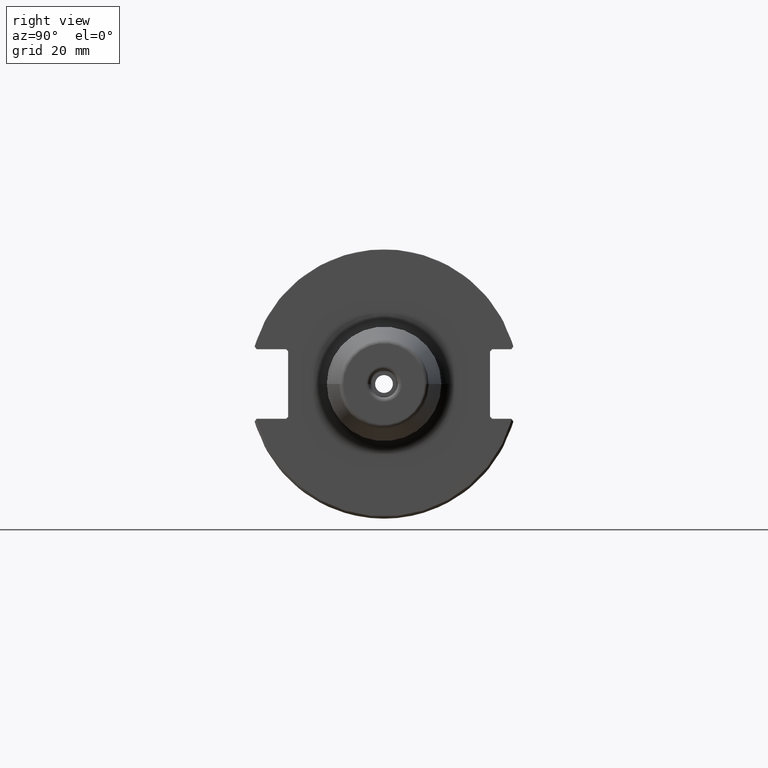
[diagram: clean part render]
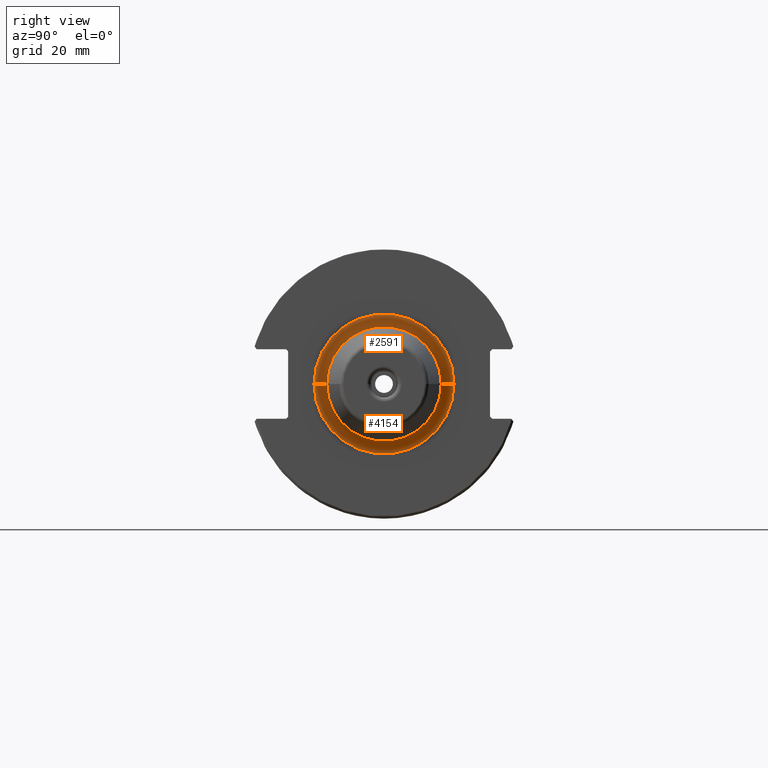
[diagram: same view with one multi-face feature highlighted, each face labeled with its STEP entity id]
A machine part, right view. The highlighted faces form ONE feature: a constant-radius fillet chain: 2 tangent blend faces with common blend radius 3 mm. The faces share edges in the B-rep.
Their STEP definitions:
[1] entity #2591 (Torus):
#286=CARTESIAN_POINT('',(2.205E1,0.E0,0.E0));
#287=DIRECTION('',(1.E0,0.E0,0.E0));
#288=DIRECTION('',(0.E0,1.E0,0.E0));
#289=AXIS2_PLACEMENT_3D('',#286,#287,#288);
#296=CARTESIAN_POINT('',(2.205E1,1.650005840383E1,-1.321951881295E-9));
#297=DIRECTION('',(0.E0,8.011801291841E-11,1.E0));
#298=DIRECTION('',(-1.E0,-1.679367755969E-11,0.E0));
#299=AXIS2_PLACEMENT_3D('',#296,#297,#298);
#346=CARTESIAN_POINT('',(1.905E1,0.E0,0.E0));
#347=DIRECTION('',(1.E0,0.E0,0.E0));
#348=DIRECTION('',(0.E0,1.E0,0.E0));
#349=AXIS2_PLACEMENT_3D('',#346,#347,#348);
#1719=CARTESIAN_POINT('',(2.205E1,-1.650005840383E1,1.321949882893E-9));
#1720=DIRECTION('',(0.E0,-8.011789148776E-11,-1.E0));
#1721=DIRECTION('',(-1.E0,1.679367755969E-11,0.E0));
#1722=AXIS2_PLACEMENT_3D('',#1719,#1720,#1721);
#2103=CARTESIAN_POINT('',(1.905E1,-1.650005840383E1,0.E0));
#2104=CARTESIAN_POINT('',(1.905E1,1.650005840383E1,0.E0));
#2105=VERTEX_POINT('',#2103);
#2106=VERTEX_POINT('',#2104);
#2107=CARTESIAN_POINT('',(2.205E1,-1.350005840383E1,0.E0));
#2108=CARTESIAN_POINT('',(2.205E1,1.350005840383E1,0.E0));
#2109=VERTEX_POINT('',#2107);
#2110=VERTEX_POINT('',#2108);
#2577=CARTESIAN_POINT('',(2.205E1,0.E0,0.E0));
#2578=DIRECTION('',(1.E0,0.E0,0.E0));
#2579=DIRECTION('',(0.E0,9.998060558283E-1,-1.969392619489E-2));
#2580=AXIS2_PLACEMENT_3D('',#2577,#2578,#2579);
#2581=TOROIDAL_SURFACE('',#2580,1.650005840383E1,3.E0);
#2583=ORIENTED_EDGE('',*,*,#2582,.F.);
#2585=ORIENTED_EDGE('',*,*,#2584,.T.);
#2586=ORIENTED_EDGE('',*,*,#2567,.T.);
#2588=ORIENTED_EDGE('',*,*,#2587,.F.);
#2589=EDGE_LOOP('',(#2583,#2585,#2586,#2588));
#2590=FACE_OUTER_BOUND('',#2589,.F.);
#2591=ADVANCED_FACE('',(#2590),#2581,.F.);
#290=CIRCLE('',#289,1.350005840383E1);
#300=CIRCLE('',#299,3.E0);
#350=CIRCLE('',#349,1.650005840383E1);
#1723=CIRCLE('',#1722,3.E0);
#2567=EDGE_CURVE('',#2110,#2109,#290,.T.);
#2582=EDGE_CURVE('',#2106,#2105,#350,.T.);
#2584=EDGE_CURVE('',#2106,#2110,#300,.T.);
#2587=EDGE_CURVE('',#2105,#2109,#1723,.T.);
[2] entity #4154 (Torus):
#296=CARTESIAN_POINT('',(2.205E1,1.650005840383E1,-1.321951881295E-9));
#297=DIRECTION('',(0.E0,8.011801291841E-11,1.E0));
#298=DIRECTION('',(-1.E0,-1.679367755969E-11,0.E0));
#299=AXIS2_PLACEMENT_3D('',#296,#297,#298);
#341=CARTESIAN_POINT('',(1.905E1,0.E0,0.E0));
#342=DIRECTION('',(1.E0,0.E0,0.E0));
#343=DIRECTION('',(0.E0,-1.E0,0.E0));
#344=AXIS2_PLACEMENT_3D('',#341,#342,#343);
#1719=CARTESIAN_POINT('',(2.205E1,-1.650005840383E1,1.321949882893E-9));
#1720=DIRECTION('',(0.E0,-8.011789148776E-11,-1.E0));
#1721=DIRECTION('',(-1.E0,1.679367755969E-11,0.E0));
#1722=AXIS2_PLACEMENT_3D('',#1719,#1720,#1721);
#1724=CARTESIAN_POINT('',(2.205E1,0.E0,0.E0));
#1725=DIRECTION('',(1.E0,0.E0,0.E0));
#1726=DIRECTION('',(0.E0,-1.E0,0.E0));
#1727=AXIS2_PLACEMENT_3D('',#1724,#1725,#1726);
#2103=CARTESIAN_POINT('',(1.905E1,-1.650005840383E1,0.E0));
#2104=CARTESIAN_POINT('',(1.905E1,1.650005840383E1,0.E0));
#2105=VERTEX_POINT('',#2103);
#2106=VERTEX_POINT('',#2104);
#2107=CARTESIAN_POINT('',(2.205E1,-1.350005840383E1,0.E0));
#2108=CARTESIAN_POINT('',(2.205E1,1.350005840383E1,0.E0));
#2109=VERTEX_POINT('',#2107);
#2110=VERTEX_POINT('',#2108);
#4142=CARTESIAN_POINT('',(2.205E1,0.E0,0.E0));
#4143=DIRECTION('',(1.E0,0.E0,0.E0));
#4144=DIRECTION('',(0.E0,-9.998060558283E-1,1.969392619489E-2));
#4145=AXIS2_PLACEMENT_3D('',#4142,#4143,#4144);
#4146=TOROIDAL_SURFACE('',#4145,1.650005840383E1,3.E0);
#4147=ORIENTED_EDGE('',*,*,#2631,.F.);
#4148=ORIENTED_EDGE('',*,*,#2587,.T.);
#4150=ORIENTED_EDGE('',*,*,#4149,.T.);
#4151=ORIENTED_EDGE('',*,*,#2584,.F.);
#4152=EDGE_LOOP('',(#4147,#4148,#4150,#4151));
#4153=FACE_OUTER_BOUND('',#4152,.F.);
#4154=ADVANCED_FACE('',(#4153),#4146,.F.);
#300=CIRCLE('',#299,3.E0);
#345=CIRCLE('',#344,1.650005840383E1);
#1723=CIRCLE('',#1722,3.E0);
#1728=CIRCLE('',#1727,1.350005840383E1);
#2584=EDGE_CURVE('',#2106,#2110,#300,.T.);
#2587=EDGE_CURVE('',#2105,#2109,#1723,.T.);
#2631=EDGE_CURVE('',#2105,#2106,#345,.T.);
#4149=EDGE_CURVE('',#2109,#2110,#1728,.T.);